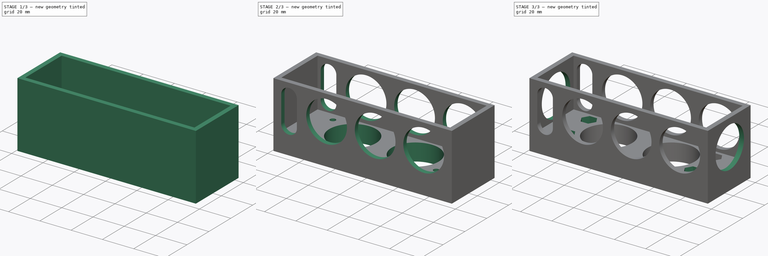
[diagram: build sequence overview — one tinted view per stage of 3, left to right]
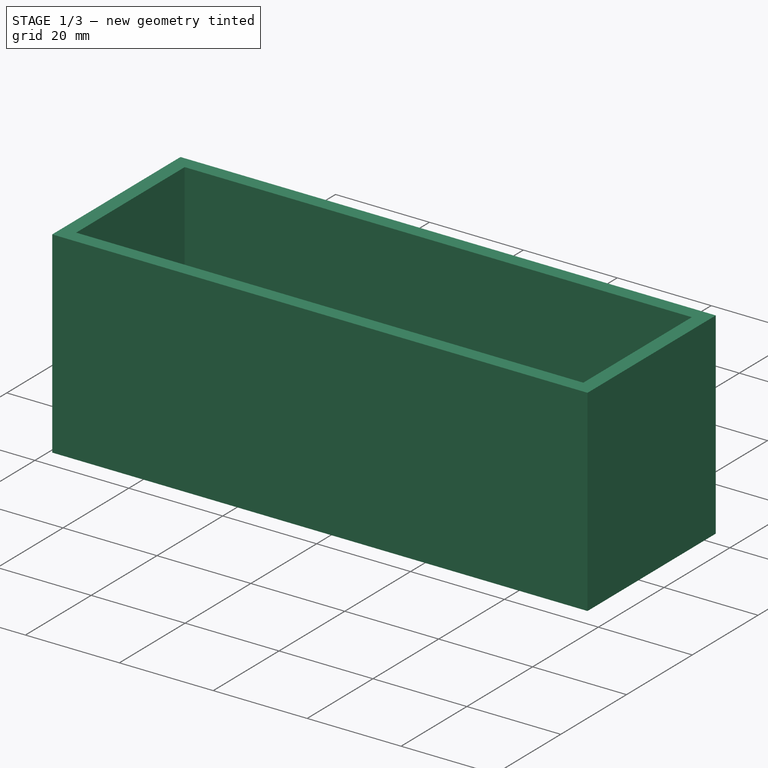
[diagram: stage 1 of 3 — iso view after this stage's code; geometry added in this stage tinted green]
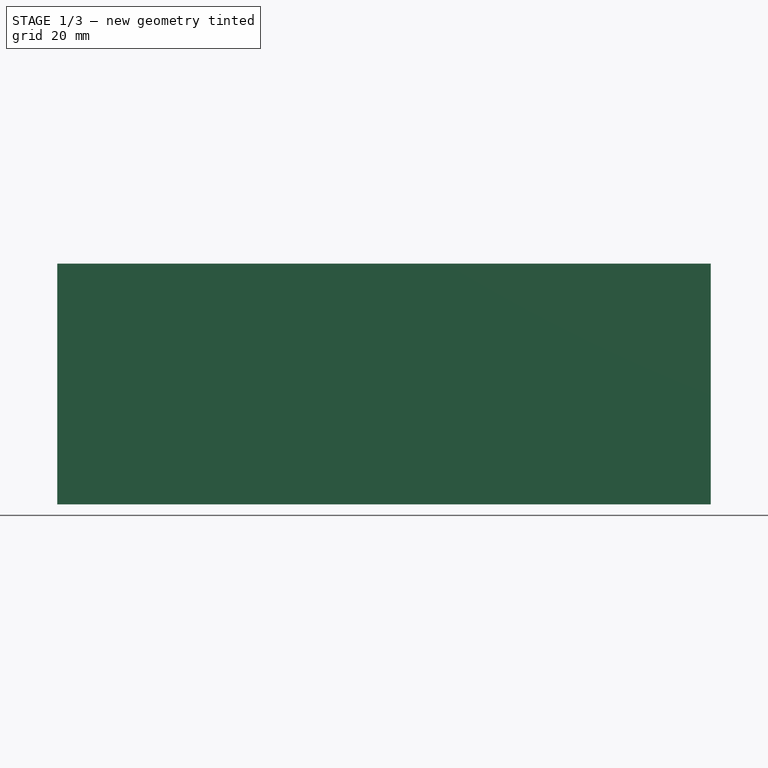
[diagram: stage 1 of 3 — front view after this stage's code; geometry added in this stage tinted green]
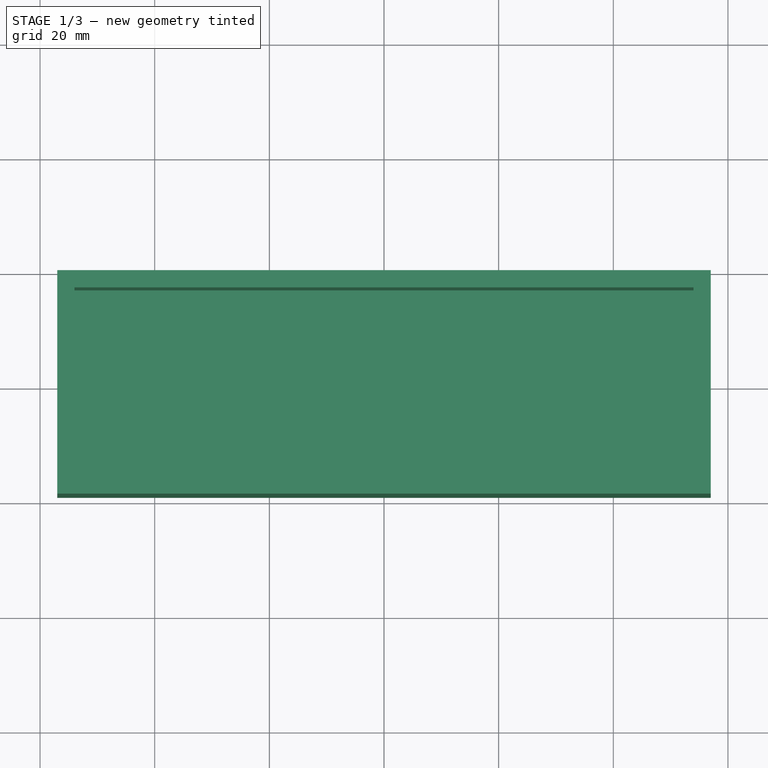
[diagram: stage 1 of 3 — top view after this stage's code; geometry added in this stage tinted green]
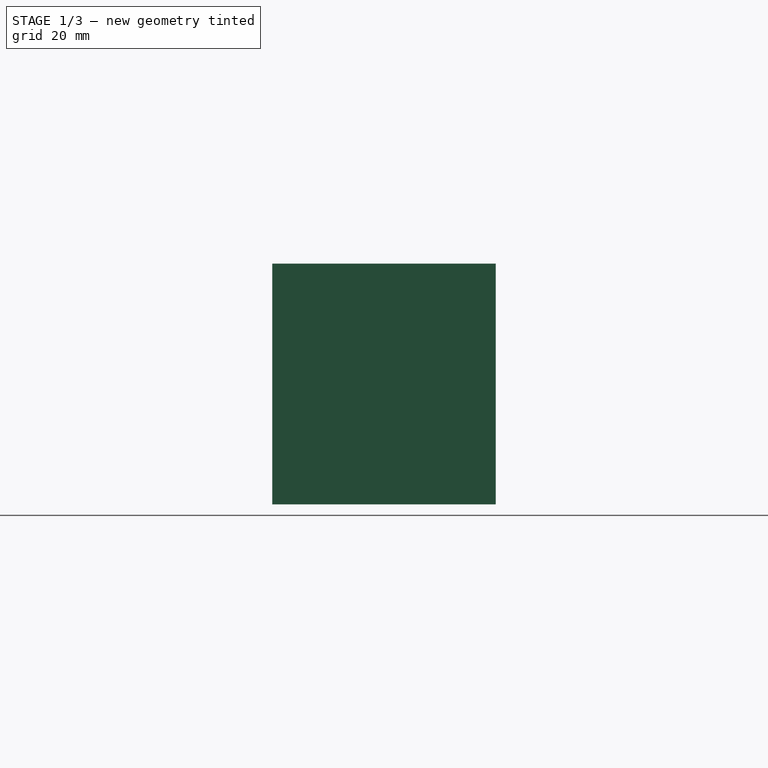
[diagram: stage 1 of 3 — right view after this stage's code; geometry added in this stage tinted green]
FCSTD DOCUMENT  (FreeCAD 0.14R3700 (Git))
Label: BattBox3
License: CC-BY 3.0
LicenseURL: http://creativecommons.org/licenses/by/3.0/
objects: Sketcher::SketchObject×7, PartDesign::Pocket×6, PartDesign::Pad×1
note: 21 computed .brp shape members not serialized (recipe doc carries the construction recipe); baked Part::Feature solids carry a one-line shape summary decoded from their .brp

FEATURE [Sketcher::SketchObject] Sketch  label="Top"
  Placement = pos=(0,0,0) rot=(1,0,0;1.5708rad)
  sketch-geometry (4):
    g0: LineSegment StartX=-57 StartY=0 StartZ=0 EndX=57 EndY=0 EndZ=0
    g1: LineSegment StartX=57 StartY=0 StartZ=0 EndX=57 EndY=42 EndZ=0
    g2: LineSegment StartX=57 StartY=42 StartZ=0 EndX=-57 EndY=42 EndZ=0
    g3: LineSegment StartX=-57 StartY=42 StartZ=0 EndX=-57 EndY=0 EndZ=0
  constraints (12):
    c: Coincident(g0,g1)
    c: Coincident(g1,g2)
    c: Coincident(g2,g3)
    c: Coincident(g3,g0)
    c: Horizontal(g0)
    c: Horizontal(g2)
    c: Vertical(g1)
    c: Vertical(g3)
    c: DistanceX(g2,g1) = 114
    c: DistanceX(g-1,g0) = 57
    c: DistanceY(g0,g1) = 42
    c: DistanceY(g-1,g0) = 0
FEATURE [PartDesign::Pad] Pad
  Length = 39
  Length2 = 20
  Placement = pos=(0,0,0) rot=(1,0,0;1.5708rad)
  Sketch = -> Sketch
  Type = 0
FEATURE [Sketcher::SketchObject] Sketch005  label="Bottom"
  ExternalGeometry = -> [Pad]
  Placement = pos=(0,0,42) rot=(0,0,1;3.14159rad)
  Support = -> Pad [Face3]
  sketch-geometry (4):
    g0: LineSegment StartX=-54 StartY=36 StartZ=0 EndX=54 EndY=36 EndZ=0
    g1: LineSegment StartX=54 StartY=36 StartZ=0 EndX=54 EndY=3 EndZ=0
    g2: LineSegment StartX=54 StartY=3 StartZ=0 EndX=-54 EndY=3 EndZ=0
    g3: LineSegment StartX=-54 StartY=3 StartZ=0 EndX=-54 EndY=36 EndZ=0
  constraints (12):
    c: Coincident(g0,g1)
    c: Coincident(g1,g2)
    c: Coincident(g2,g3)
    c: Coincident(g3,g0)
    c: Horizontal(g0)
    c: Horizontal(g2)
    c: Vertical(g1)
    c: Vertical(g3)
    c: DistanceY(g-5,g0) = -3
    c: DistanceX(g-5,g0) = -3
    c: DistanceY(g1,g-3) = -3
    c: DistanceX(g-4,g2) = 3
FEATURE [PartDesign::Pocket] Pocket
  Length = 31
  Placement = pos=(0,0,0) rot=(1,0,0;1.5708rad)
  Sketch = -> Sketch005
  Type = 0
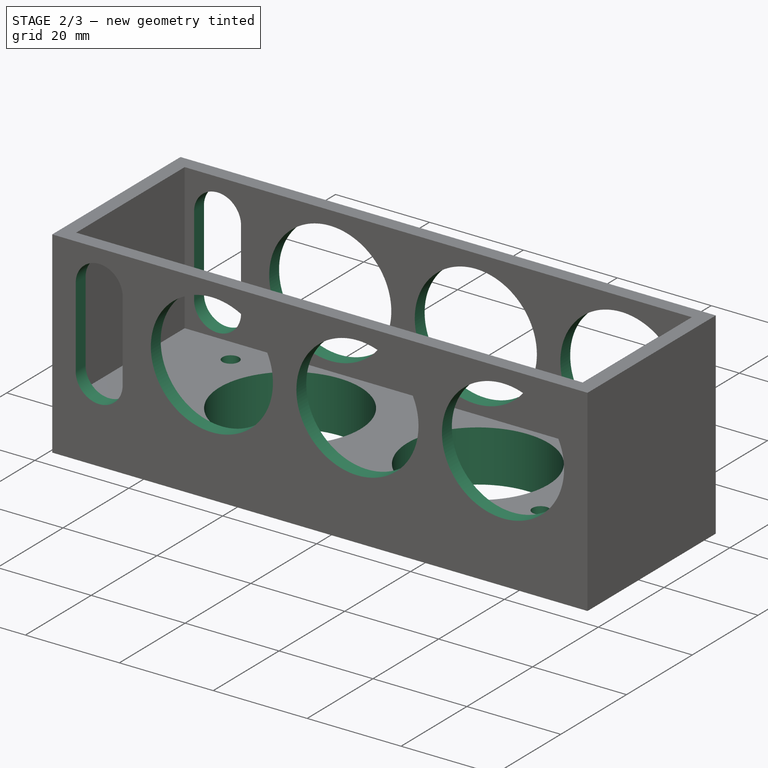
[diagram: stage 2 of 3 — iso view after this stage's code; geometry added in this stage tinted green]
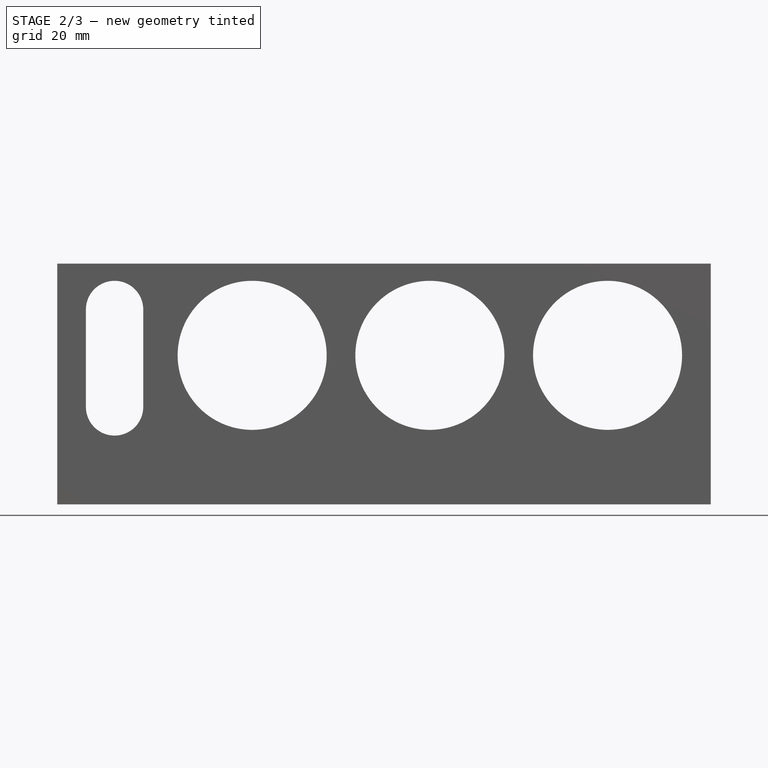
[diagram: stage 2 of 3 — front view after this stage's code; geometry added in this stage tinted green]
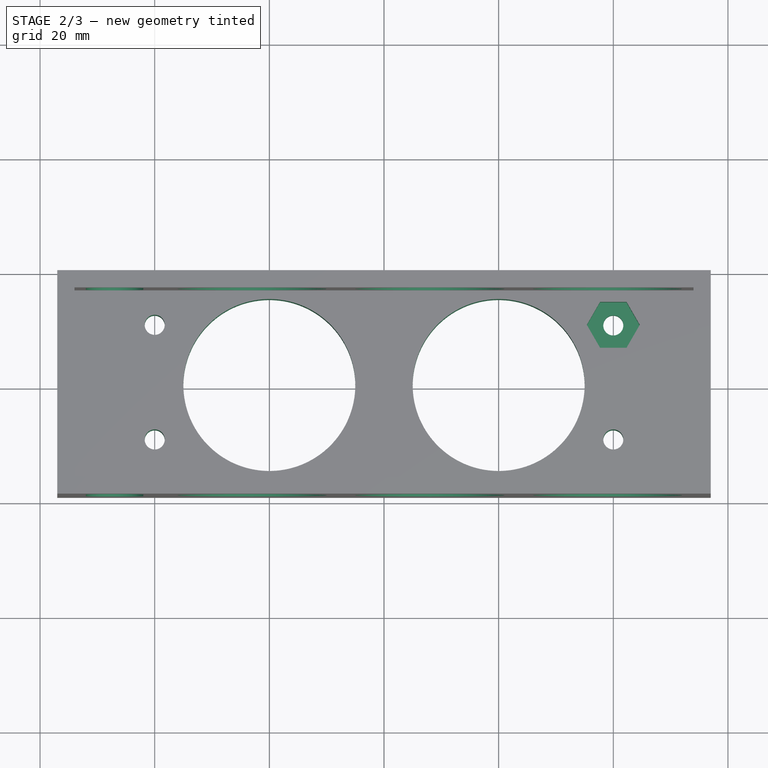
[diagram: stage 2 of 3 — top view after this stage's code; geometry added in this stage tinted green]
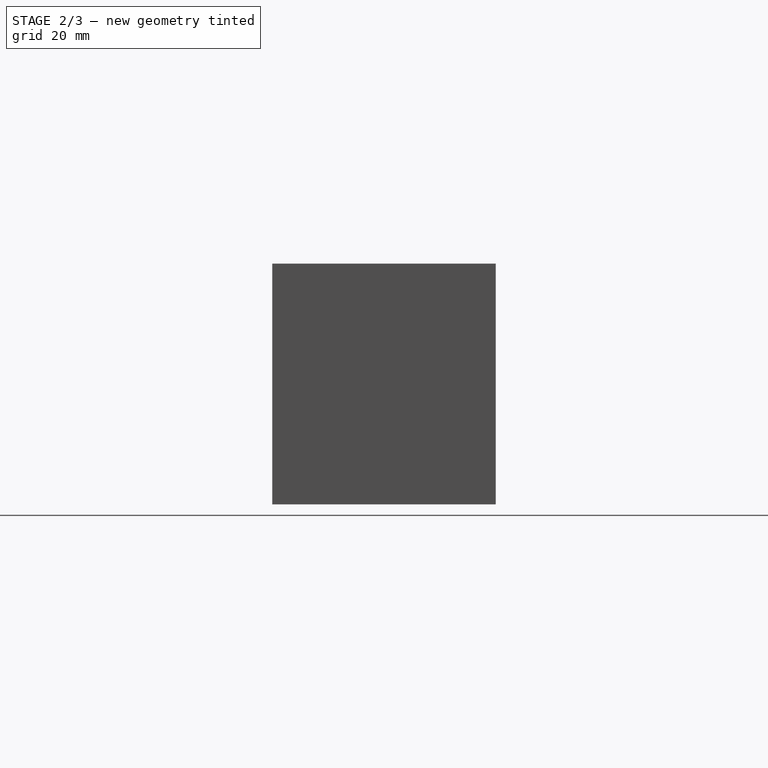
[diagram: stage 2 of 3 — right view after this stage's code; geometry added in this stage tinted green]
FEATURE [Sketcher::SketchObject] Sketch007  label="top cutouts"
  ExternalGeometry = -> [Pocket]
  Placement = pos=(0,-39,0) rot=(1,0,0;1.5708rad)
  Support = -> Pocket [Face5]
  sketch-geometry (7):
    g0: Circle CenterX=-23 CenterY=26 CenterZ=0 NormalX=0 NormalY=0 NormalZ=1 Radius=13
    g1: Circle CenterX=8 CenterY=26 CenterZ=0 NormalX=0 NormalY=0 NormalZ=1 Radius=13
    g2: Circle CenterX=39 CenterY=26 CenterZ=0 NormalX=0 NormalY=0 NormalZ=1 Radius=13
    g3: ArcOfCircle CenterX=-47 CenterY=34 CenterZ=0 NormalX=0 NormalY=0 NormalZ=1 Radius=5 StartAngle=6.28318 EndAngle=9.42478
    g4: ArcOfCircle CenterX=-47 CenterY=17 CenterZ=0 NormalX=0 NormalY=0 NormalZ=1 Radius=5 StartAngle=3.14159 EndAngle=6.28319
    g5: LineSegment StartX=-52 StartY=34 StartZ=0 EndX=-52 EndY=17 EndZ=0
    g6: LineSegment StartX=-42 StartY=34 StartZ=0 EndX=-42 EndY=17 EndZ=0
  constraints (23):
    c: Tangent(g3,g5)
    c: Tangent(g3,g6)
    c: Tangent(g4,g5)
    c: Tangent(g4,g6)
    c: Coincident(g3,g6)
    c: Coincident(g3,g5)
    c: Coincident(g5,g4)
    c: Coincident(g6,g4)
    c: Vertical(g5)
    c: Equal(g3,g4)
    c: Radius(g3) = 5
    c: DistanceY(g3,g-3) = 8
    c: DistanceY(g3,g4) = -17
    c: DistanceY(g0,g-3) = 16
    c: DistanceY(g0,g1) = 0
    c: DistanceY(g2,g0) = 0
    c: Radius(g0) = 13
    c: Radius(g1) = 13
    c: Radius(g2) = 13
    c: DistanceX(g2,g-3) = 18
    c: DistanceX(g1,g2) = 31
    c: DistanceX(g0,g1) = 31
    c: DistanceX(g-3,g3) = 10
FEATURE [PartDesign::Pocket] Pocket001
  Length = 5
  Placement = pos=(0,0,0) rot=(1,0,0;1.5708rad)
  Sketch = -> Sketch007
  Type = 1
FEATURE [Sketcher::SketchObject] Sketch006  label="Back Cut out"
  ExternalGeometry = -> [Pocket001]
  Placement = pos=(0,0,11) rot=(0,0,1;3.14159rad)
  Support = -> Pocket001 [Face25]
  sketch-geometry (6):
    g0: Circle CenterX=-40 CenterY=29 CenterZ=0 NormalX=0 NormalY=0 NormalZ=1 Radius=1.75
    g1: Circle CenterX=40 CenterY=29 CenterZ=0 NormalX=0 NormalY=0 NormalZ=1 Radius=1.75
    g2: Circle CenterX=-40 CenterY=9 CenterZ=0 NormalX=0 NormalY=0 NormalZ=1 Radius=1.75
    g3: Circle CenterX=40 CenterY=9 CenterZ=0 NormalX=0 NormalY=0 NormalZ=1 Radius=1.75
    g4: Circle CenterX=-20 CenterY=19.5 CenterZ=0 NormalX=0 NormalY=0 NormalZ=1 Radius=15
    g5: Circle CenterX=20 CenterY=19.5 CenterZ=0 NormalX=0 NormalY=0 NormalZ=1 Radius=15
  constraints (18):
    c: DistanceX(g2,g3) = 80
    c: DistanceY(g3,g2) = 0
    c: DistanceX(g0,g2) = 0
    c: DistanceY(g2,g0) = 20
    c: Radius(g2) = 1.75
    c: Radius(g0) = 1.75
    c: Radius(g3) = 1.75
    c: DistanceX(g1,g3) = 0
    c: DistanceY(g1,g3) = -20
    c: Radius(g1) = 1.75
    c: Radius(g4) = 15
    c: Radius(g5) = 15
    c: DistanceY(g2) = 9
    c: DistanceX(g-1,g2) = -40
    c: DistanceY(g5,g-3) = -16.5
    c: DistanceY(g5,g4) = 0
    c: DistanceX(g5,g4) = -40
    c: DistanceX(g-1,g4) = -20
FEATURE [PartDesign::Pocket] Pocket002
  Length = 5
  Placement = pos=(0,0,0) rot=(1,0,0;1.5708rad)
  Sketch = -> Sketch006
  Type = 1
FEATURE [Sketcher::SketchObject] Sketch010  label="nut cut out - 1"
  Placement = pos=(0,0,11) rot=(0,0,1;3.14159rad)
  Support = -> Pocket002 [Face27]
  sketch-geometry (7):
    g0: Circle [constr] CenterX=-40 CenterY=9 CenterZ=0 NormalX=0 NormalY=0 NormalZ=1 Radius=4
    g1: LineSegment StartX=-42.3094 StartY=13 StartZ=0 EndX=-37.6906 EndY=13 EndZ=0
    g2: LineSegment StartX=-37.6906 StartY=5 StartZ=0 EndX=-42.3094 EndY=5 EndZ=0
    g3: LineSegment StartX=-42.3094 StartY=5 StartZ=0 EndX=-44.6188 EndY=9 EndZ=0
    g4: LineSegment StartX=-44.6188 StartY=9 StartZ=0 EndX=-42.3094 EndY=13 EndZ=0
    g5: LineSegment StartX=-37.6906 StartY=13 StartZ=0 EndX=-35.3812 EndY=9 EndZ=0
    g6: LineSegment StartX=-35.3812 StartY=9 StartZ=0 EndX=-37.6906 EndY=5 EndZ=0
  constraints (20):
    c: Radius(g0) = 4
    c: Horizontal(g1)
    c: Horizontal(g2)
    c: Tangent(g2,g0)
    c: Coincident(g2,g3)
    c: Coincident(g3,g4)
    c: Coincident(g4,g1)
    c: Tangent(g1,g0)
    c: Tangent(g3,g0)
    c: Tangent(g4,g0)
    c: Coincident(g5,g6)
    c: Coincident(g5,g1)
    c: Coincident(g2,g6)
    c: Tangent(g0,g6)
    c: Tangent(g5,g0)
    c: Equal(g5,g6)
    c: Equal(g6,g2)
    c: Equal(g2,g3)
    c: Equal(g3,g4)
    c: Equal(g4,g1)
FEATURE [PartDesign::Pocket] Pocket003
  Length = 6
  Placement = pos=(0,0,0) rot=(1,0,0;1.5708rad)
  Sketch = -> Sketch010
  Type = 0
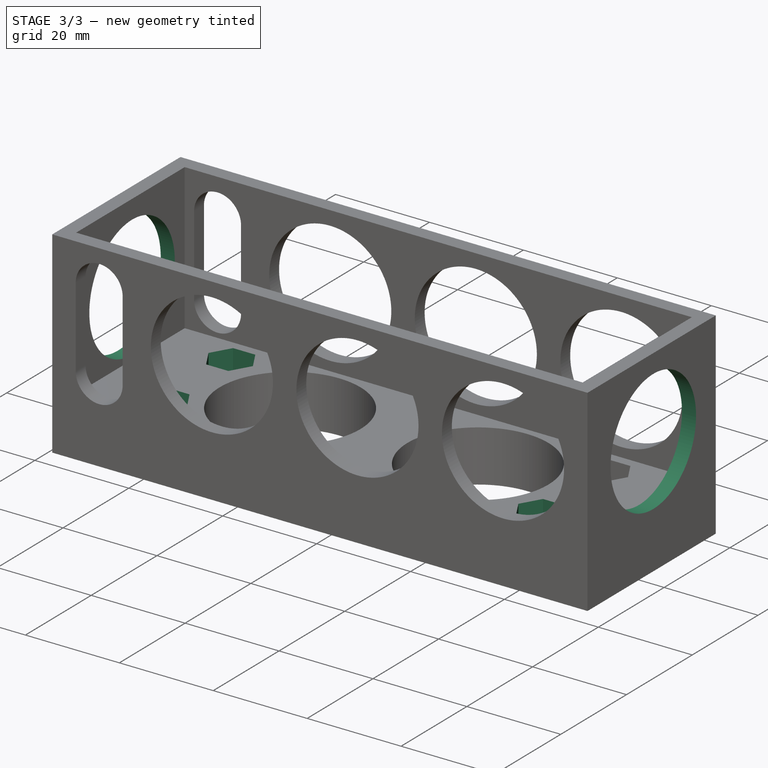
[diagram: stage 3 of 3 — iso view after this stage's code; geometry added in this stage tinted green]
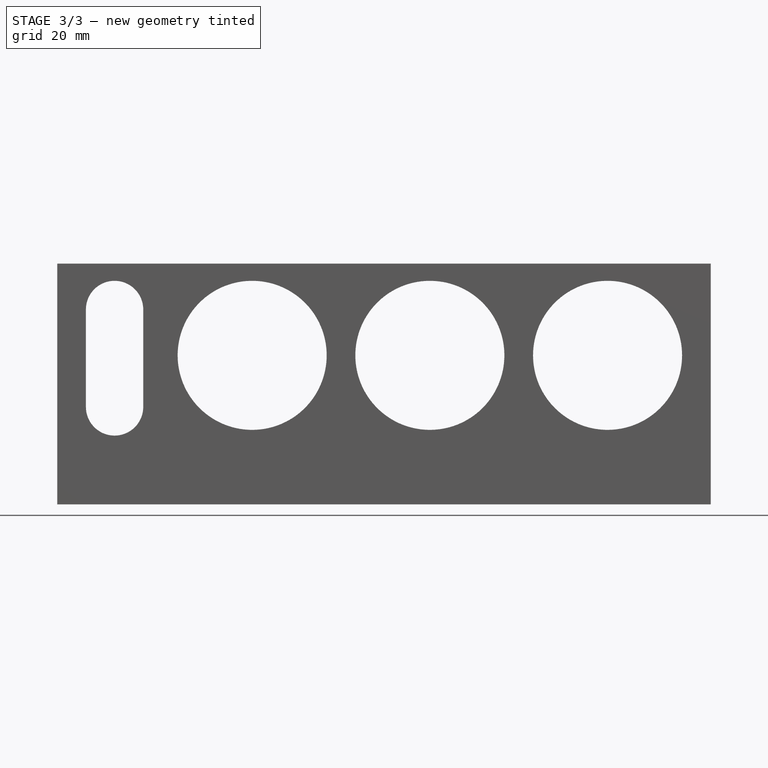
[diagram: stage 3 of 3 — front view after this stage's code; geometry added in this stage tinted green]
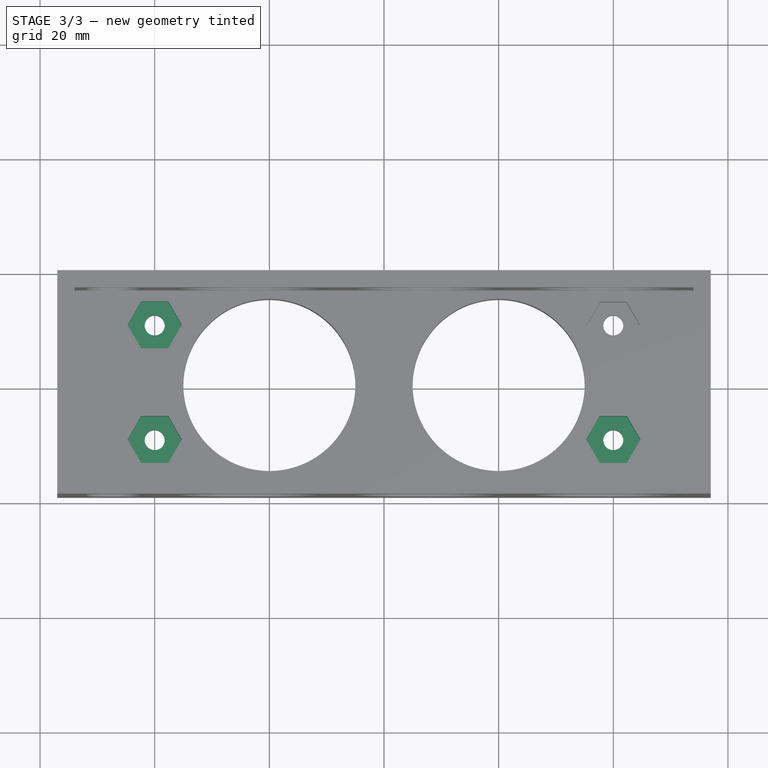
[diagram: stage 3 of 3 — top view after this stage's code; geometry added in this stage tinted green]
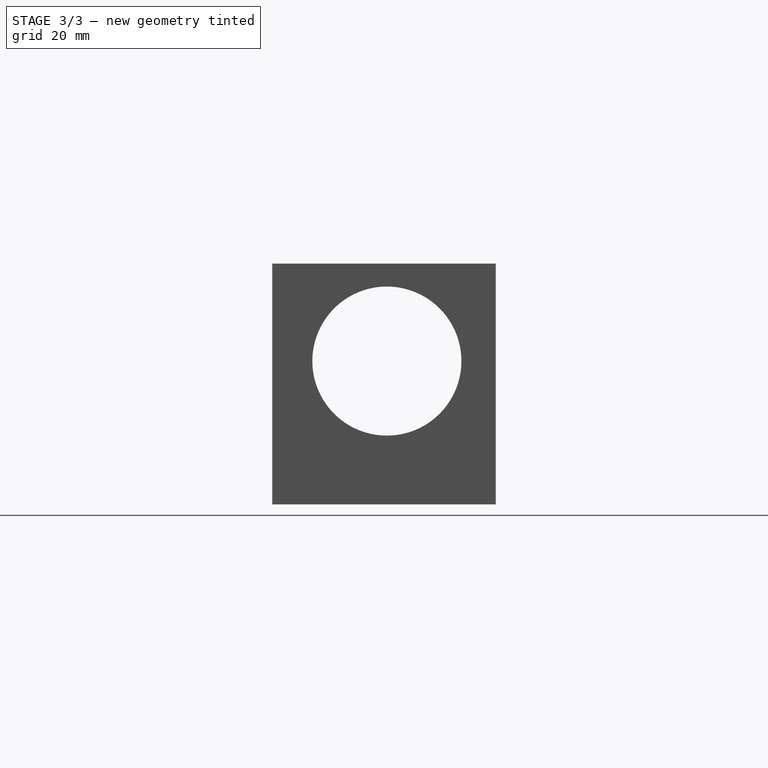
[diagram: stage 3 of 3 — right view after this stage's code; geometry added in this stage tinted green]
FEATURE [Sketcher::SketchObject] Sketch011  label="nut cut out - 2"
  ExternalGeometry = -> [Pocket003]
  Placement = pos=(0,0,11) rot=(0,0,1;3.14159rad)
  Support = -> Pocket003 [Face27]
  sketch-geometry (21):
    g0: Circle [constr] CenterX=-40 CenterY=29 CenterZ=0 NormalX=0 NormalY=0 NormalZ=1 Radius=4.1
    g1: LineSegment StartX=-42.3671 StartY=33.1 StartZ=0 EndX=-37.6329 EndY=33.1 EndZ=0
    g2: LineSegment StartX=-37.6329 StartY=33.1 StartZ=0 EndX=-35.2657 EndY=29 EndZ=0
    g3: LineSegment StartX=-35.2657 StartY=29 StartZ=0 EndX=-37.6329 EndY=24.9 EndZ=0
    g4: LineSegment StartX=-37.6329 StartY=24.9 StartZ=0 EndX=-42.3671 EndY=24.9 EndZ=0
    g5: LineSegment StartX=-42.3671 StartY=24.9 StartZ=0 EndX=-44.7343 EndY=29 EndZ=0
    g6: LineSegment StartX=-44.7343 StartY=29 StartZ=0 EndX=-42.3671 EndY=33.1 EndZ=0
    g7: Circle [constr] CenterX=40 CenterY=29 CenterZ=0 NormalX=0 NormalY=0 NormalZ=1 Radius=4.1
    g8: LineSegment StartX=37.6329 StartY=33.1 StartZ=0 EndX=42.3671 EndY=33.1 EndZ=0
    g9: LineSegment StartX=42.3671 StartY=33.1 StartZ=0 EndX=44.7343 EndY=29 EndZ=0
    g10: LineSegment StartX=44.7343 StartY=29 StartZ=0 EndX=42.3671 EndY=24.9 EndZ=0
    g11: LineSegment StartX=42.3671 StartY=24.9 StartZ=0 EndX=37.6329 EndY=24.9 EndZ=0
    g12: LineSegment StartX=37.6329 StartY=24.9 StartZ=0 EndX=35.2657 EndY=29 EndZ=0
    g13: LineSegment StartX=35.2657 StartY=29 StartZ=0 EndX=37.6329 EndY=33.1 EndZ=0
    g14: Circle [constr] CenterX=40 CenterY=9 CenterZ=0 NormalX=0 NormalY=0 NormalZ=1 Radius=4.1
    g15: LineSegment StartX=37.6329 StartY=13.1 StartZ=0 EndX=42.3671 EndY=13.1 EndZ=0
    g16: LineSegment StartX=42.3671 StartY=13.1 StartZ=0 EndX=44.7343 EndY=9 EndZ=0
    g17: LineSegment StartX=44.7343 StartY=9 StartZ=0 EndX=42.3671 EndY=4.9 EndZ=0
    g18: LineSegment StartX=42.3671 StartY=4.9 StartZ=0 EndX=37.6329 EndY=4.9 EndZ=0
    g19: LineSegment StartX=37.6329 StartY=4.9 StartZ=0 EndX=35.2657 EndY=9 EndZ=0
    g20: LineSegment StartX=35.2657 StartY=9 StartZ=0 EndX=37.6329 EndY=13.1 EndZ=0
  constraints (63):
    c: Coincident(g1,g2)
    c: Coincident(g2,g3)
    c: Coincident(g3,g4)
    c: Coincident(g4,g5)
    c: Coincident(g5,g6)
    c: Coincident(g6,g1)
    c: Tangent(g1,g0)
    c: Tangent(g2,g0)
    c: Tangent(g0,g3)
    c: Tangent(g4,g0)
    c: Tangent(g6,g0)
    c: Radius(g0) = 4.1
    c: Tangent(g5,g0)
    c: Equal(g3,g2)
    c: Equal(g2,g1)
    c: Equal(g1,g6)
    c: Equal(g6,g5)
    c: Equal(g5,g4)
    c: Horizontal(g4)
    c: Horizontal(g1)
    c: Coincident(g8,g9)
    c: Coincident(g9,g10)
    c: Coincident(g10,g11)
    c: Coincident(g11,g12)
    c: Coincident(g12,g13)
    c: Coincident(g13,g8)
    c: Horizontal(g8)
    c: Horizontal(g11)
    c: Tangent(g8,g7)
    c: Radius(g7) = 4.1
    c: Tangent(g13,g7)
    c: Tangent(g12,g7)
    c: Tangent(g11,g7)
    c: Tangent(g10,g7)
    c: Tangent(g9,g7)
    c: Equal(g10,g9)
    c: Equal(g9,g8)
    c: Equal(g8,g13)
    c: Equal(g13,g12)
    c: Equal(g12,g11)
    c: Coincident(g15,g16)
    c: Coincident(g16,g17)
    c: Coincident(g17,g18)
    c: Coincident(g18,g19)
    c: Coincident(g19,g20)
    c: Coincident(g15,g20)
    c: Horizontal(g15)
    c: Horizontal(g18)
    c: Radius(g14) = 4.1
    c: Tangent(g15,g14)
    c: Tangent(g16,g14)
    c: Tangent(g20,g14)
    c: Tangent(g19,g14)
    c: Tangent(g18,g14)
    c: Tangent(g17,g14)
    c: Equal(g15,g16)
    c: Equal(g16,g17)
    c: Equal(g17,g18)
    c: Equal(g18,g19)
    c: Equal(g19,g20)
    c: Coincident(g-3,g0)
    c: Coincident(g7,g-5)
    c: Coincident(g14,g-4)
FEATURE [PartDesign::Pocket] Pocket004
  Length = 6
  Placement = pos=(0,0,0) rot=(1,0,0;1.5708rad)
  Sketch = -> Sketch011
  Type = 0
FEATURE [Sketcher::SketchObject] Sketch008  label="side cutouts"
  ExternalGeometry = -> [Pocket004]
  Placement = pos=(-57,0,0) rot=(0.707107,0,-0.707107;3.14159rad)
  Support = -> Pocket004 [Face2]
  sketch-geometry (1):
    g0: Circle CenterX=-25 CenterY=19 CenterZ=0 NormalX=0 NormalY=0 NormalZ=1 Radius=13
  constraints (3):
    c: DistanceX(g-4,g0) = 17
    c: Radius(g0) = 13
    c: DistanceY(g-4,g0) = -20
FEATURE [PartDesign::Pocket] Pocket005
  Length = 5
  Placement = pos=(0,0,0) rot=(1,0,0;1.5708rad)
  Sketch = -> Sketch008
  Type = 1
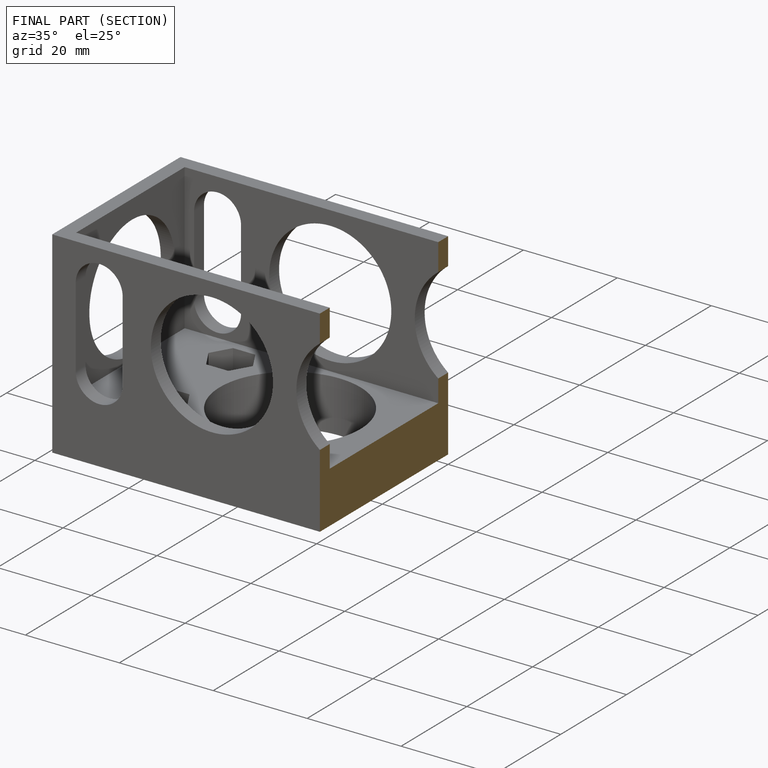
[diagram: finished part — half-section view (interior)]
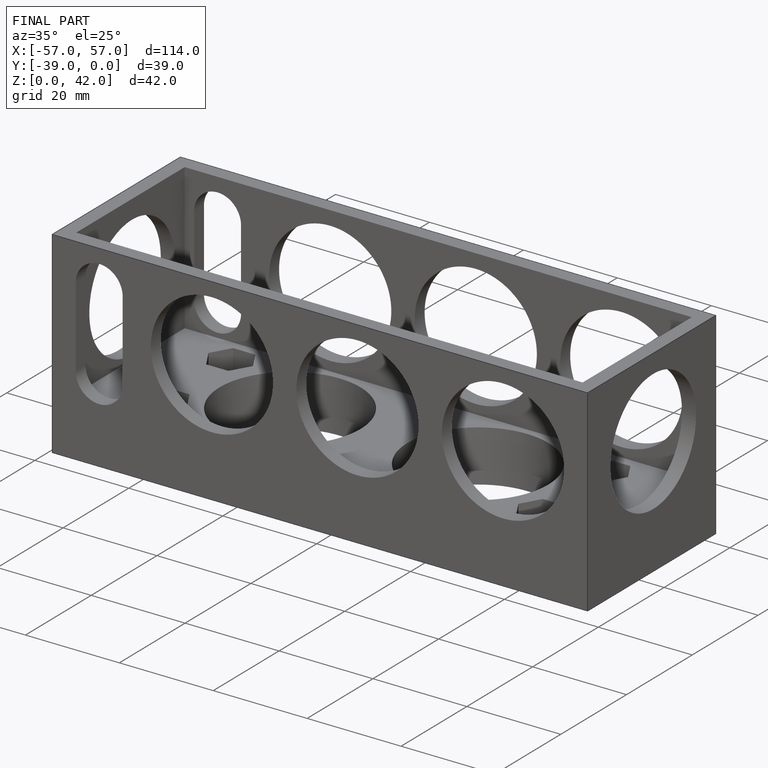
[diagram: finished part — iso view with bounding-box wireframe]
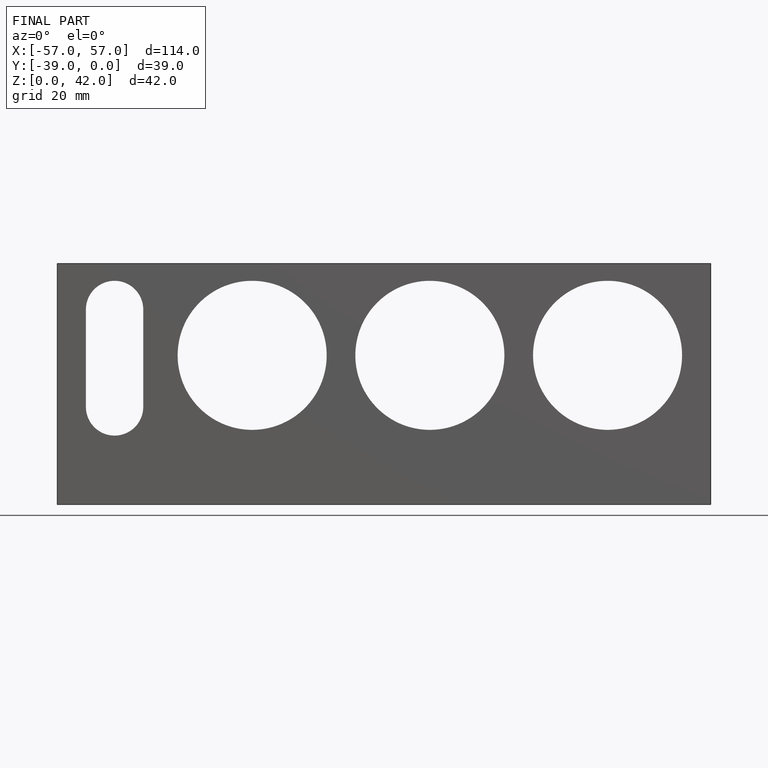
[diagram: finished part — front view with bounding-box wireframe]
